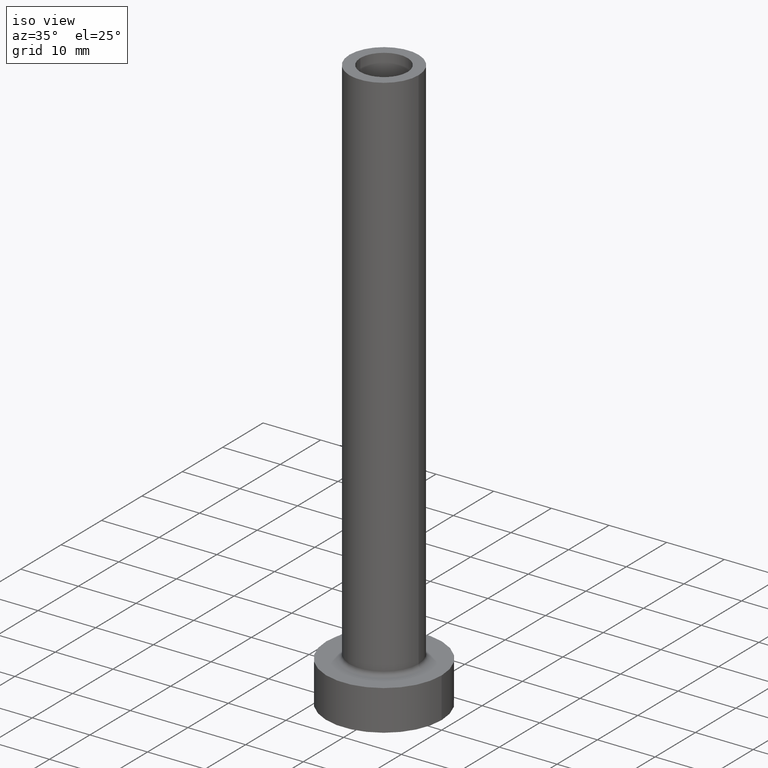
[diagram: clean part render]
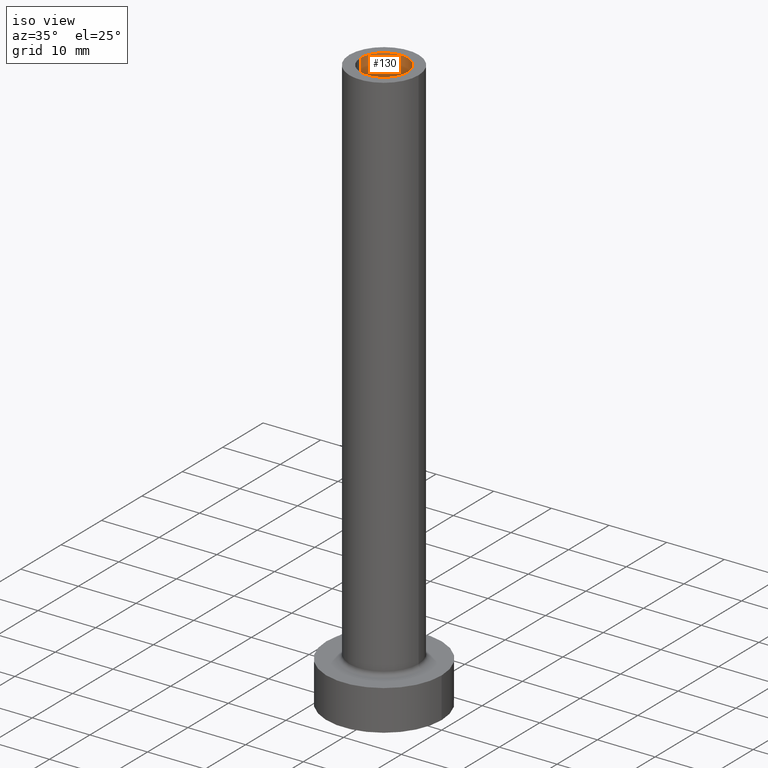
[diagram: same view with one face highlighted and labeled with its STEP entity id]
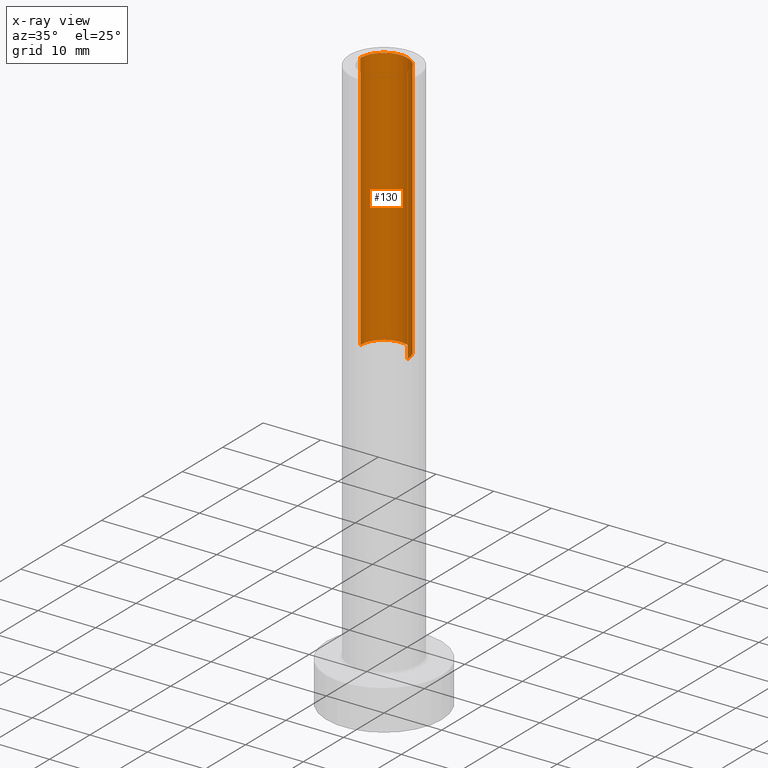
[diagram: x-ray of the same camera — body ghosted, the highlighted face saturated]
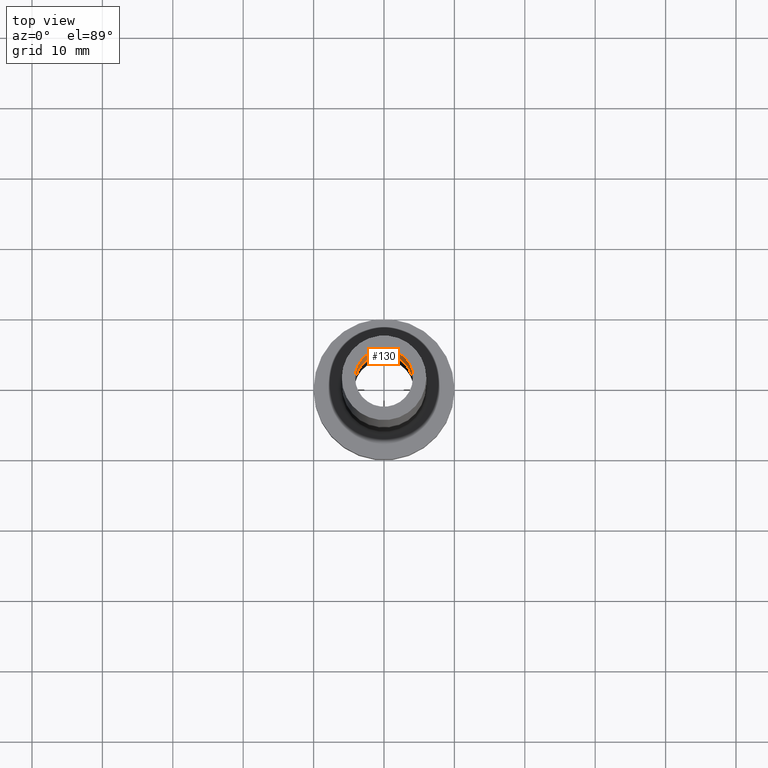
[diagram: same view with one face highlighted and labeled with its STEP entity id]
A machine part, iso view. The second image highlights one B-rep face of the part: STEP entity #130.
The next image is the same camera in x-ray: the body ghosted, the highlighted face saturated — about 0% of this face is hidden behind the body in this view.
A second angle (top view) of the same face is appended — the face is thin or edge-on in the first view.
In plain terms, the highlighted cylindrical surface (edge-blend (fillet) strip) has radius 4.1 mm, axis along (0, 0, -1).
Its self-contained STEP definition (entity closure, byte-faithful):
#5 = CIRCLE ( 'NONE', #334, 4.099999999999999645 ) ;
#9 = CARTESIAN_POINT ( 'NONE',  ( 4.099999999999999645, 5.021051876504146399E-16, 55.00000000000000711 ) ) ;
#15 = CARTESIAN_POINT ( 'NONE',  ( 0.000000000000000000, 0.000000000000000000, 100.0000000000000000 ) ) ;
#19 = DIRECTION ( 'NONE',  ( 0.000000000000000000, 0.000000000000000000, -1.000000000000000000 ) ) ;
#35 = ORIENTED_EDGE ( 'NONE', *, *, #315, .T. ) ;
#62 = VECTOR ( 'NONE', #401, 1000.000000000000000 ) ;
#73 = EDGE_CURVE ( 'NONE', #400, #289, #188, .T. ) ;
#77 = VERTEX_POINT ( 'NONE', #153 ) ;
#79 = LINE ( 'NONE', #159, #62 ) ;
#84 = CYLINDRICAL_SURFACE ( 'NONE', #298, 4.099999999999999645 ) ;
#114 = ORIENTED_EDGE ( 'NONE', *, *, #73, .F. ) ;
#115 = VECTOR ( 'NONE', #19, 1000.000000000000000 ) ;
#119 = EDGE_LOOP ( 'NONE', ( #114, #439, #35, #421 ) ) ;
#123 = CARTESIAN_POINT ( 'NONE',  ( -4.099999999999999645, 0.000000000000000000, 100.0000000000000000 ) ) ;
#125 = CARTESIAN_POINT ( 'NONE',  ( 0.000000000000000000, 0.000000000000000000, 55.00000000000000711 ) ) ;
#127 = DIRECTION ( 'NONE',  ( 1.000000000000000000, 0.000000000000000000, 0.000000000000000000 ) ) ;
#130 = ADVANCED_FACE ( 'NONE', ( #342 ), #84, .F. ) ;
#153 = CARTESIAN_POINT ( 'NONE',  ( -4.099999999999999645, 0.000000000000000000, 55.00000000000000711 ) ) ;
#155 = DIRECTION ( 'NONE',  ( -1.000000000000000000, 0.000000000000000000, 0.000000000000000000 ) ) ;
#159 = CARTESIAN_POINT ( 'NONE',  ( -4.099999999999999645, 0.000000000000000000, 100.0000000000000000 ) ) ;
#162 = CIRCLE ( 'NONE', #319, 4.099999999999999645 ) ;
#188 = LINE ( 'NONE', #311, #115 ) ;
#234 = DIRECTION ( 'NONE',  ( 0.000000000000000000, 0.000000000000000000, -1.000000000000000000 ) ) ;
#267 = EDGE_CURVE ( 'NONE', #289, #77, #162, .T. ) ;
#277 = EDGE_CURVE ( 'NONE', #400, #303, #5, .T. ) ;
#289 = VERTEX_POINT ( 'NONE', #9 ) ;
#298 = AXIS2_PLACEMENT_3D ( 'NONE', #15, #234, #155 ) ;
#302 = DIRECTION ( 'NONE',  ( 0.000000000000000000, 0.000000000000000000, 1.000000000000000000 ) ) ;
#303 = VERTEX_POINT ( 'NONE', #123 ) ;
#311 = CARTESIAN_POINT ( 'NONE',  ( 4.099999999999999645, 5.021051876504146399E-16, 100.0000000000000000 ) ) ;
#315 = EDGE_CURVE ( 'NONE', #303, #77, #79, .T. ) ;
#319 = AXIS2_PLACEMENT_3D ( 'NONE', #125, #302, #437 ) ;
#320 = CARTESIAN_POINT ( 'NONE',  ( 4.099999999999999645, 5.021051876504146399E-16, 100.0000000000000000 ) ) ;
#334 = AXIS2_PLACEMENT_3D ( 'NONE', #339, #376, #127 ) ;
#339 = CARTESIAN_POINT ( 'NONE',  ( 0.000000000000000000, 0.000000000000000000, 100.0000000000000000 ) ) ;
#342 = FACE_OUTER_BOUND ( 'NONE', #119, .T. ) ;
#376 = DIRECTION ( 'NONE',  ( 0.000000000000000000, 0.000000000000000000, 1.000000000000000000 ) ) ;
#400 = VERTEX_POINT ( 'NONE', #320 ) ;
#401 = DIRECTION ( 'NONE',  ( 0.000000000000000000, 0.000000000000000000, -1.000000000000000000 ) ) ;
#421 = ORIENTED_EDGE ( 'NONE', *, *, #267, .F. ) ;
#437 = DIRECTION ( 'NONE',  ( 1.000000000000000000, 0.000000000000000000, 0.000000000000000000 ) ) ;
#439 = ORIENTED_EDGE ( 'NONE', *, *, #277, .T. ) ;